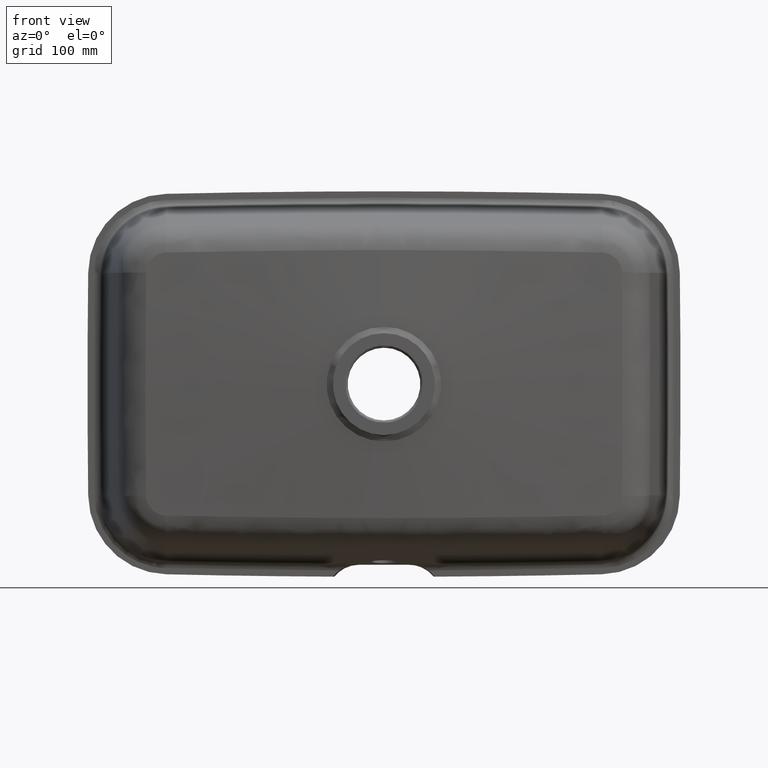
[diagram: clean part render]
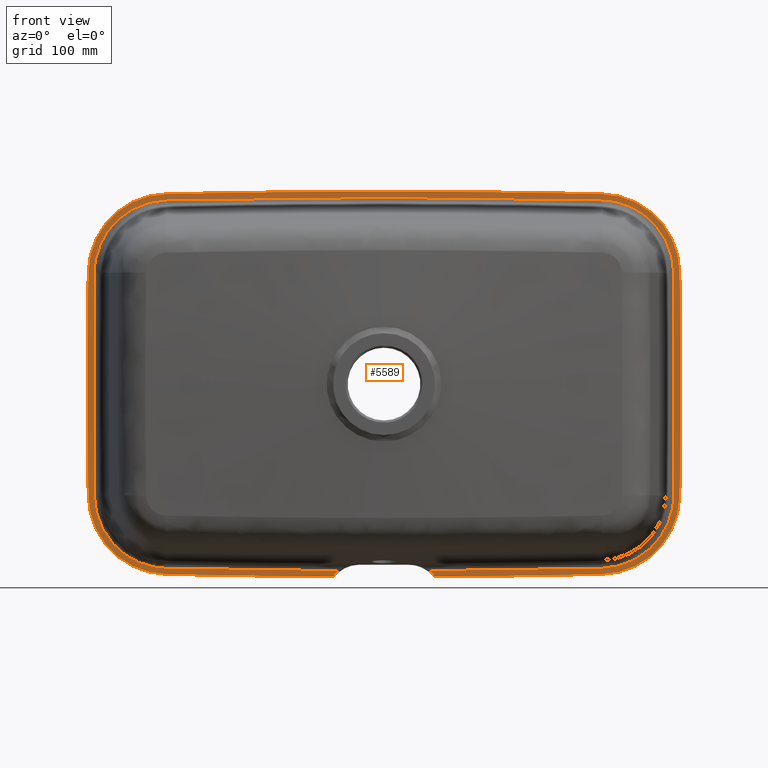
[diagram: same view with one face highlighted and labeled with its STEP entity id]
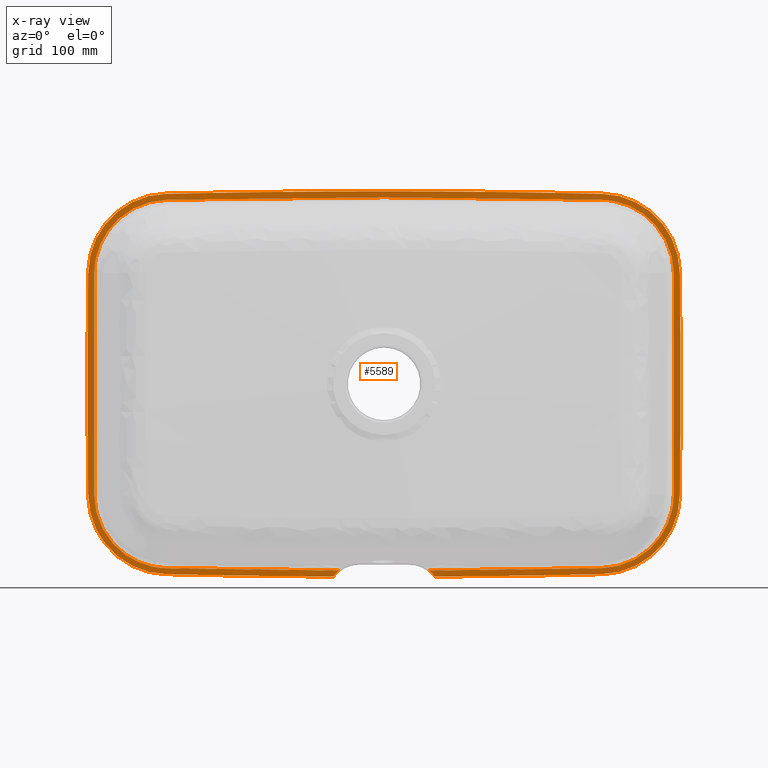
[diagram: x-ray of the same camera — body ghosted, the highlighted face saturated]
A machine part, front view. The second image highlights one B-rep face of the part: STEP entity #5589.
The next image is the same camera in x-ray: the body ghosted, the highlighted face saturated — about 0% of this face is hidden behind the body in this view.
In plain terms, the highlighted planar face has unit normal (0, 1, 0).
Its self-contained STEP definition (entity closure, byte-faithful):
#14 = CARTESIAN_POINT ( 'NONE',  ( -61.46391683930869500, 203.4999999999999400, -237.5908480095762900 ) ) ;
#21 = CARTESIAN_POINT ( 'NONE',  ( -2.789091418521479200E-012, 203.5000000000000000, -11595.50000000000000 ) ) ;
#40 = CARTESIAN_POINT ( 'NONE',  ( -181.1740568797071100, 203.5000000000000000, 231.9082853297289000 ) ) ;
#61 = VERTEX_POINT ( 'NONE', #4414 ) ;
#64 = DIRECTION ( 'NONE',  ( 0.0000000000000000000, 0.0000000000000000000, 1.000000000000000000 ) ) ;
#85 = CARTESIAN_POINT ( 'NONE',  ( 269.6277817311143400, 203.5000000000000000, 137.9024523715530700 ) ) ;
#86 = VERTEX_POINT ( 'NONE', #6248 ) ;
#101 = DIRECTION ( 'NONE',  ( 0.0000000000000000000, 1.000000000000000000, 0.0000000000000000000 ) ) ;
#116 = CARTESIAN_POINT ( 'NONE',  ( -369.1198211993104200, 203.5000000000000000, -139.1610557480865100 ) ) ;
#129 = CARTESIAN_POINT ( 'NONE',  ( -271.7401651241040100, 203.5000000000000000, 229.8271209816148800 ) ) ;
#144 = CARTESIAN_POINT ( 'NONE',  ( -134.8138908655571400, 203.5000000000000000, 5728.798773814222800 ) ) ;
#298 = ORIENTED_EDGE ( 'NONE', *, *, #433, .F. ) ;
#313 = CARTESIAN_POINT ( 'NONE',  ( 324.0794901203088300, 203.5000000000000000, -228.6243891948755000 ) ) ;
#318 = CIRCLE ( 'NONE', #1266, 11001.50000000000400 ) ;
#331 = ORIENTED_EDGE ( 'NONE', *, *, #5134, .F. ) ;
#383 = AXIS2_PLACEMENT_3D ( 'NONE', #6853, #976, #1057 ) ;
#388 = CARTESIAN_POINT ( 'NONE',  ( 369.1198211993098500, 203.5000000000000000, -139.1610557480904600 ) ) ;
#405 = CARTESIAN_POINT ( 'NONE',  ( -271.7401651240930400, 203.5000000000000000, -229.8271209816169600 ) ) ;
#433 = EDGE_CURVE ( 'NONE', #1028, #4282, #6781, .T. ) ;
#455 = CARTESIAN_POINT ( 'NONE',  ( 361.5693614940846600, 203.5000000000000000, -139.0655402261418800 ) ) ;
#477 = CARTESIAN_POINT ( 'NONE',  ( -199.9874987070502600, 203.5000000000000000, -231.4759617469318300 ) ) ;
#482 = VERTEX_POINT ( 'NONE', #6131 ) ;
#539 = CARTESIAN_POINT ( 'NONE',  ( -56.45497491660113100, 203.4999992537958900, -232.8142155136796700 ) ) ;
#558 = CARTESIAN_POINT ( 'NONE',  ( -361.5693614940870500, 203.5000000000000000, -139.0655402261398000 ) ) ;
#563 = ORIENTED_EDGE ( 'NONE', *, *, #2788, .F. ) ;
#596 = AXIS2_PLACEMENT_3D ( 'NONE', #21, #2124, #64 ) ;
#623 = DIRECTION ( 'NONE',  ( 0.0000000000000000000, 1.000000000000000000, 0.0000000000000000000 ) ) ;
#633 = VERTEX_POINT ( 'NONE', #2573 ) ;
#634 = CIRCLE ( 'NONE', #3671, 11836.00000000000000 ) ;
#652 = DIRECTION ( 'NONE',  ( 0.0000000000000000000, 1.000000000000000000, 0.0000000000000000000 ) ) ;
#706 =( BOUNDED_CURVE ( )  B_SPLINE_CURVE ( 3, ( #2717, #3730, #5882, #558 ),
 .UNSPECIFIED., .F., .F. ) 
 B_SPLINE_CURVE_WITH_KNOTS ( ( 4, 4 ),
 ( 0.0000000000000000000, 1.000000000000000000 ),
 .UNSPECIFIED. ) 
 CURVE ( )  GEOMETRIC_REPRESENTATION_ITEM ( )  RATIONAL_B_SPLINE_CURVE ( ( 1.000000000000000000, 0.9999466631034741300, 0.9999466631034741300, 1.000000000000000000 ) ) 
 REPRESENTATION_ITEM ( '' )  );
#721 = CARTESIAN_POINT ( 'NONE',  ( 59.08227640845071700, 203.5000000000000900, -235.0857419168407000 ) ) ;
#806 = CARTESIAN_POINT ( 'NONE',  ( 181.1740568797055500, 203.5000000000000000, 231.9082853297272500 ) ) ;
#904 = CARTESIAN_POINT ( 'NONE',  ( -360.9071319300246000, 203.4999999999999700, -191.4144939579395600 ) ) ;
#956 = EDGE_CURVE ( 'NONE', #3403, #2384, #6052, .T. ) ;
#976 = DIRECTION ( 'NONE',  ( 0.0000000000000000000, 1.000000000000000000, 0.0000000000000000000 ) ) ;
#983 = CARTESIAN_POINT ( 'NONE',  ( 271.7401651241060600, 203.5000000000000000, 229.8271209816126700 ) ) ;
#1028 = VERTEX_POINT ( 'NONE', #3636 ) ;
#1034 = DIRECTION ( 'NONE',  ( 0.0000000000000000000, 0.0000000000000000000, 1.000000000000000000 ) ) ;
#1050 = B_SPLINE_CURVE_WITH_KNOTS ( 'NONE', 3,
 ( #4841, #3129, #3788, #4334 ),
 .UNSPECIFIED., .F., .F.,
 ( 4, 4 ),
 ( 0.0000000000000000000, 1.000000000000000000 ),
 .UNSPECIFIED. ) ;
#1057 = DIRECTION ( 'NONE',  ( 0.0000000000000000000, 0.0000000000000000000, 1.000000000000000000 ) ) ;
#1080 = CARTESIAN_POINT ( 'NONE',  ( -10631.50000000000000, 203.5000000000000000, 2.574334280931536900E-012 ) ) ;
#1112 = CARTESIAN_POINT ( 'NONE',  ( -63.60033079769817000, 203.5000000008343200, -240.3291216892005200 ) ) ;
#1114 = CARTESIAN_POINT ( 'NONE',  ( -271.7401651241040100, 203.5000000000000000, 229.8271209816148800 ) ) ;
#1115 = ORIENTED_EDGE ( 'NONE', *, *, #2928, .F. ) ;
#1126 =( BOUNDED_CURVE ( )  B_SPLINE_CURVE ( 3, ( #129, #6009, #2295, #6034 ),
 .UNSPECIFIED., .F., .F. ) 
 B_SPLINE_CURVE_WITH_KNOTS ( ( 4, 4 ),
 ( 0.0000000000000000000, 1.000000000000000000 ),
 .UNSPECIFIED. ) 
 CURVE ( )  GEOMETRIC_REPRESENTATION_ITEM ( )  RATIONAL_B_SPLINE_CURVE ( ( 1.000000000000000000, 0.8130595385763244000, 0.8130595385763244000, 1.000000000000000000 ) ) 
 REPRESENTATION_ITEM ( '' )  );
#1134 = CARTESIAN_POINT ( 'NONE',  ( 5.834249964947717800E-014, 203.5000000000000000, 11595.50000000000000 ) ) ;
#1148 = PLANE ( 'NONE',  #1841 ) ;
#1212 = EDGE_CURVE ( 'NONE', #6640, #2904, #6430, .T. ) ;
#1266 = AXIS2_PLACEMENT_3D ( 'NONE', #1080, #4254, #1609 ) ;
#1277 = VERTEX_POINT ( 'NONE', #2889 ) ;
#1325 = DIRECTION ( 'NONE',  ( 0.0000000000000000000, 0.0000000000000000000, 1.000000000000000000 ) ) ;
#1335 = DIRECTION ( 'NONE',  ( 0.0000000000000000000, 1.000000000000000000, 0.0000000000000000000 ) ) ;
#1382 = VERTEX_POINT ( 'NONE', #1112 ) ;
#1397 = ORIENTED_EDGE ( 'NONE', *, *, #1655, .T. ) ;
#1419 = CARTESIAN_POINT ( 'NONE',  ( 361.5693614940860800, 203.5000000000000000, 139.0655402261398300 ) ) ;
#1441 = DIRECTION ( 'NONE',  ( 0.0000000000000000000, 1.000000000000000000, 0.0000000000000000000 ) ) ;
#1463 = CARTESIAN_POINT ( 'NONE',  ( 362.7421433664842400, 203.5000000000000000, -46.35765264870482800 ) ) ;
#1465 = ORIENTED_EDGE ( 'NONE', *, *, #4057, .F. ) ;
#1508 = CARTESIAN_POINT ( 'NONE',  ( -271.7401651241040100, 203.5000000000000000, 229.8271209816148800 ) ) ;
#1574 = CARTESIAN_POINT ( 'NONE',  ( -2.783677875738043500E-012, 203.5000000000000000, 232.9489361693133800 ) ) ;
#1609 = DIRECTION ( 'NONE',  ( 0.0000000000000000000, 0.0000000000000000000, 1.000000000000000000 ) ) ;
#1655 = EDGE_CURVE ( 'NONE', #86, #5818, #5123, .T. ) ;
#1664 = DIRECTION ( 'NONE',  ( 0.0000000000000000000, 1.000000000000000000, 0.0000000000000000000 ) ) ;
#1684 = ORIENTED_EDGE ( 'NONE', *, *, #1212, .F. ) ;
#1700 = DIRECTION ( 'NONE',  ( 0.0000000000000000000, -0.0000000000000000000, 1.000000000000000000 ) ) ;
#1725 = B_SPLINE_CURVE_WITH_KNOTS ( 'NONE', 3,
 ( #2069, #2515, #14, #6357, #3754, #539 ),
 .UNSPECIFIED., .F., .F.,
 ( 4, 2, 4 ),
 ( 0.0000000000000000000, 0.005184831452077947100, 0.01036966290415589400 ),
 .UNSPECIFIED. ) ;
#1841 = AXIS2_PLACEMENT_3D ( 'NONE', #144, #623, #1700 ) ;
#1866 = DIRECTION ( 'NONE',  ( 0.0000000000000000000, 0.0000000000000000000, 1.000000000000000000 ) ) ;
#1867 = VERTEX_POINT ( 'NONE', #3030 ) ;
#1954 = ORIENTED_EDGE ( 'NONE', *, *, #2109, .F. ) ;
#2023 = CARTESIAN_POINT ( 'NONE',  ( -271.7401651240930400, 203.5000000000000000, -229.8271209816169600 ) ) ;
#2066 = AXIS2_PLACEMENT_3D ( 'NONE', #5661, #1441, #2431 ) ;
#2069 = CARTESIAN_POINT ( 'NONE',  ( -63.60033079769817000, 203.5000000008343200, -240.3291216892005200 ) ) ;
#2093 = EDGE_CURVE ( 'NONE', #1382, #1867, #1725, .T. ) ;
#2109 = EDGE_CURVE ( 'NONE', #2904, #5238, #318, .T. ) ;
#2121 = EDGE_CURVE ( 'NONE', #482, #61, #706, .T. ) ;
#2124 = DIRECTION ( 'NONE',  ( 0.0000000000000000000, 1.000000000000000000, 0.0000000000000000000 ) ) ;
#2240 = CARTESIAN_POINT ( 'NONE',  ( -369.1198211993098500, 203.5000000000000000, 139.1610557480790900 ) ) ;
#2284 = DIRECTION ( 'NONE',  ( 0.0000000000000000000, 0.0000000000000000000, 1.000000000000000000 ) ) ;
#2295 = CARTESIAN_POINT ( 'NONE',  ( -360.9071319300259100, 203.5000000000000000, 191.4144939579320800 ) ) ;
#2319 = CIRCLE ( 'NONE', #383, 11836.00000000000000 ) ;
#2346 = CARTESIAN_POINT ( 'NONE',  ( 63.60033079867832800, 203.5000000007762300, -240.3291216932633200 ) ) ;
#2363 = CARTESIAN_POINT ( 'NONE',  ( 271.7401651241060600, 203.5000000000000000, 229.8271209816126700 ) ) ;
#2384 = VERTEX_POINT ( 'NONE', #5147 ) ;
#2409 = B_SPLINE_CURVE_WITH_KNOTS ( 'NONE', 3,
 ( #6172, #2988, #477, #4642 ),
 .UNSPECIFIED., .F., .F.,
 ( 4, 4 ),
 ( 0.0000000000000000000, 1.000000000000000000 ),
 .UNSPECIFIED. ) ;
#2431 = DIRECTION ( 'NONE',  ( 0.0000000000000000000, 0.0000000000000000000, 1.000000000000000000 ) ) ;
#2469 = CARTESIAN_POINT ( 'NONE',  ( -361.5693614940870500, 203.5000000000000000, -139.0655402261398000 ) ) ;
#2498 = VERTEX_POINT ( 'NONE', #1114 ) ;
#2515 = CARTESIAN_POINT ( 'NONE',  ( -62.57361342567095600, 203.5000000000000000, -238.9205354701124700 ) ) ;
#2573 = CARTESIAN_POINT ( 'NONE',  ( -2.789091418521479200E-012, 203.5000000000000000, 240.5000000000008200 ) ) ;
#2700 = DIRECTION ( 'NONE',  ( 0.0000000000000000000, 0.0000000000000000000, 1.000000000000000000 ) ) ;
#2717 = CARTESIAN_POINT ( 'NONE',  ( -361.5693614940866500, 203.5000000000000000, 139.0655402261348900 ) ) ;
#2722 = ORIENTED_EDGE ( 'NONE', *, *, #2093, .T. ) ;
#2788 = EDGE_CURVE ( 'NONE', #4282, #1277, #4860, .T. ) ;
#2801 =( BOUNDED_CURVE ( )  B_SPLINE_CURVE ( 3, ( #2469, #904, #3032, #2023 ),
 .UNSPECIFIED., .F., .F. ) 
 B_SPLINE_CURVE_WITH_KNOTS ( ( 4, 4 ),
 ( 0.0000000000000000000, 1.000000000000000000 ),
 .UNSPECIFIED. ) 
 CURVE ( )  GEOMETRIC_REPRESENTATION_ITEM ( )  RATIONAL_B_SPLINE_CURVE ( ( 1.000000000000000000, 0.8130595385763088600, 0.8130595385763088600, 1.000000000000000000 ) ) 
 REPRESENTATION_ITEM ( '' )  );
#2815 = ORIENTED_EDGE ( 'NONE', *, *, #3310, .F. ) ;
#2871 = CARTESIAN_POINT ( 'NONE',  ( 62.57361342612173900, 203.5000000000000000, -238.9205354705374300 ) ) ;
#2876 = AXIS2_PLACEMENT_3D ( 'NONE', #4469, #1335, #1866 ) ;
#2889 = CARTESIAN_POINT ( 'NONE',  ( 361.5693614940860800, 203.5000000000000000, 139.0655402261398300 ) ) ;
#2904 = VERTEX_POINT ( 'NONE', #4719 ) ;
#2928 = EDGE_CURVE ( 'NONE', #2384, #2498, #4232, .T. ) ;
#2985 = ORIENTED_EDGE ( 'NONE', *, *, #4185, .T. ) ;
#2988 = CARTESIAN_POINT ( 'NONE',  ( -128.2257698910690900, 203.5000000000000000, -232.4716583746813100 ) ) ;
#3010 = CARTESIAN_POINT ( 'NONE',  ( 271.7401651241094100, 203.5000000000000000, -229.8271209816142000 ) ) ;
#3030 = CARTESIAN_POINT ( 'NONE',  ( -56.45497491660113100, 203.4999992537958900, -232.8142155136796700 ) ) ;
#3032 = CARTESIAN_POINT ( 'NONE',  ( -324.0794901203048000, 203.4999999999999700, -228.6243891948870700 ) ) ;
#3095 = ORIENTED_EDGE ( 'NONE', *, *, #3982, .F. ) ;
#3129 = CARTESIAN_POINT ( 'NONE',  ( 199.9874987070470200, 203.5000000000000000, -231.4759617469315200 ) ) ;
#3157 = EDGE_CURVE ( 'NONE', #2498, #482, #1126, .T. ) ;
#3304 = VERTEX_POINT ( 'NONE', #4007 ) ;
#3310 = EDGE_CURVE ( 'NONE', #3668, #633, #634, .T. ) ;
#3381 = EDGE_CURVE ( 'NONE', #61, #5073, #2801, .T. ) ;
#3403 = VERTEX_POINT ( 'NONE', #983 ) ;
#3524 = DIRECTION ( 'NONE',  ( 0.0000000000000000000, 1.000000000000000000, 0.0000000000000000000 ) ) ;
#3567 = ORIENTED_EDGE ( 'NONE', *, *, #6045, .F. ) ;
#3636 = CARTESIAN_POINT ( 'NONE',  ( 271.7401651241094100, 203.5000000000000000, -229.8271209816142000 ) ) ;
#3668 = VERTEX_POINT ( 'NONE', #5003 ) ;
#3671 = AXIS2_PLACEMENT_3D ( 'NONE', #6126, #3524, #1325 ) ;
#3730 = CARTESIAN_POINT ( 'NONE',  ( -362.7421433664841300, 203.5000000000000000, 46.35765264869956300 ) ) ;
#3754 = CARTESIAN_POINT ( 'NONE',  ( -57.81033628010186500, 203.5000000000000900, -233.9103197506993000 ) ) ;
#3788 = CARTESIAN_POINT ( 'NONE',  ( 128.2257698910627800, 203.5000000000000000, -232.4716583746819100 ) ) ;
#3905 =( BOUNDED_CURVE ( )  B_SPLINE_CURVE ( 3, ( #1419, #4198, #6776, #6188 ),
 .UNSPECIFIED., .F., .F. ) 
 B_SPLINE_CURVE_WITH_KNOTS ( ( 4, 4 ),
 ( 0.0000000000000000000, 1.000000000000000000 ),
 .UNSPECIFIED. ) 
 CURVE ( )  GEOMETRIC_REPRESENTATION_ITEM ( )  RATIONAL_B_SPLINE_CURVE ( ( 1.000000000000000000, 0.8130595385763355100, 0.8130595385763355100, 1.000000000000000000 ) ) 
 REPRESENTATION_ITEM ( '' )  );
#3982 = EDGE_CURVE ( 'NONE', #5238, #3304, #4545, .T. ) ;
#3999 = FACE_OUTER_BOUND ( 'NONE', #6458, .T. ) ;
#4007 = CARTESIAN_POINT ( 'NONE',  ( 271.9136390380002700, 203.5000000000000000, -237.3761919030126800 ) ) ;
#4013 = CARTESIAN_POINT ( 'NONE',  ( 361.5693614940846600, 203.5000000000000000, -139.0655402261418800 ) ) ;
#4015 = AXIS2_PLACEMENT_3D ( 'NONE', #85, #652, #2700 ) ;
#4057 = EDGE_CURVE ( 'NONE', #6543, #4387, #6196, .T. ) ;
#4083 = CARTESIAN_POINT ( 'NONE',  ( 360.9071319300198300, 203.5000000000000000, -191.4144939579320800 ) ) ;
#4121 = ORIENTED_EDGE ( 'NONE', *, *, #3381, .F. ) ;
#4138 = AXIS2_PLACEMENT_3D ( 'NONE', #5398, #5917, #1034 ) ;
#4185 = EDGE_CURVE ( 'NONE', #1028, #86, #1050, .T. ) ;
#4198 = CARTESIAN_POINT ( 'NONE',  ( 360.9071319300219300, 203.5000000000000000, 191.4144939579331000 ) ) ;
#4232 =( BOUNDED_CURVE ( )  B_SPLINE_CURVE ( 3, ( #1574, #4281, #40, #1508 ),
 .UNSPECIFIED., .F., .T. ) 
 B_SPLINE_CURVE_WITH_KNOTS ( ( 4, 4 ),
 ( 0.0000000000000000000, 1.000000000000000000 ),
 .UNSPECIFIED. ) 
 CURVE ( )  GEOMETRIC_REPRESENTATION_ITEM ( )  RATIONAL_B_SPLINE_CURVE ( ( 1.000000000000000000, 0.9999560111642461500, 0.9999560111642461500, 1.000000000000000000 ) ) 
 REPRESENTATION_ITEM ( '' )  );
#4254 = DIRECTION ( 'NONE',  ( 0.0000000000000000000, 1.000000000000000000, 0.0000000000000000000 ) ) ;
#4281 = CARTESIAN_POINT ( 'NONE',  ( -90.59001715189261000, 203.5000000000000000, 232.9489361693131300 ) ) ;
#4282 = VERTEX_POINT ( 'NONE', #5486 ) ;
#4323 = VERTEX_POINT ( 'NONE', #2240 ) ;
#4334 = CARTESIAN_POINT ( 'NONE',  ( 56.45497491694102600, 203.4999992538626000, -232.8142155132655100 ) ) ;
#4387 = VERTEX_POINT ( 'NONE', #116 ) ;
#4414 = CARTESIAN_POINT ( 'NONE',  ( -361.5693614940870500, 203.5000000000000000, -139.0655402261398000 ) ) ;
#4469 = CARTESIAN_POINT ( 'NONE',  ( 269.6277817311152500, 203.5000000000000000, -137.9024523715539800 ) ) ;
#4494 = EDGE_CURVE ( 'NONE', #633, #6640, #4706, .T. ) ;
#4509 = EDGE_CURVE ( 'NONE', #1382, #6543, #6191, .T. ) ;
#4545 = CIRCLE ( 'NONE', #2876, 99.50000000000036900 ) ;
#4548 = CARTESIAN_POINT ( 'NONE',  ( 90.59001715189045000, 203.5000000000000000, 232.9489361693131300 ) ) ;
#4621 = CARTESIAN_POINT ( 'NONE',  ( 361.5693614940860800, 203.5000000000000000, 139.0655402261398300 ) ) ;
#4642 = CARTESIAN_POINT ( 'NONE',  ( -271.7401651240930400, 203.5000000000000000, -229.8271209816169600 ) ) ;
#4693 = EDGE_CURVE ( 'NONE', #1867, #5073, #2409, .T. ) ;
#4706 = CIRCLE ( 'NONE', #596, 11836.00000000000000 ) ;
#4719 = CARTESIAN_POINT ( 'NONE',  ( 369.1198211993091100, 203.5000000000000000, 139.1610557480871100 ) ) ;
#4725 = ORIENTED_EDGE ( 'NONE', *, *, #956, .F. ) ;
#4841 = CARTESIAN_POINT ( 'NONE',  ( 271.7401651241094100, 203.5000000000000000, -229.8271209816142000 ) ) ;
#4860 =( BOUNDED_CURVE ( )  B_SPLINE_CURVE ( 3, ( #455, #1463, #5751, #4621 ),
 .UNSPECIFIED., .F., .F. ) 
 B_SPLINE_CURVE_WITH_KNOTS ( ( 4, 4 ),
 ( 0.0000000000000000000, 1.000000000000000000 ),
 .UNSPECIFIED. ) 
 CURVE ( )  GEOMETRIC_REPRESENTATION_ITEM ( )  RATIONAL_B_SPLINE_CURVE ( ( 1.000000000000000000, 0.9999466631034741300, 0.9999466631034741300, 1.000000000000000000 ) ) 
 REPRESENTATION_ITEM ( '' )  );
#4873 = ORIENTED_EDGE ( 'NONE', *, *, #3157, .F. ) ;
#4997 = CARTESIAN_POINT ( 'NONE',  ( 56.45497491694102600, 203.4999992538626000, -232.8142155132655100 ) ) ;
#5003 = CARTESIAN_POINT ( 'NONE',  ( -271.9136390379958400, 203.5000000000000000, 237.3761919030138500 ) ) ;
#5055 = ORIENTED_EDGE ( 'NONE', *, *, #5428, .F. ) ;
#5073 = VERTEX_POINT ( 'NONE', #405 ) ;
#5123 = B_SPLINE_CURVE_WITH_KNOTS ( 'NONE', 3,
 ( #4997, #5502, #721, #6552, #2871, #2346 ),
 .UNSPECIFIED., .F., .F.,
 ( 4, 2, 4 ),
 ( 0.0000000000000000000, 0.005184831452515787000, 0.01036966290503157400 ),
 .UNSPECIFIED. ) ;
#5134 = EDGE_CURVE ( 'NONE', #4387, #4323, #6765, .T. ) ;
#5147 = CARTESIAN_POINT ( 'NONE',  ( -2.783677875738043500E-012, 203.5000000000000000, 232.9489361693133800 ) ) ;
#5238 = VERTEX_POINT ( 'NONE', #388 ) ;
#5343 = AXIS2_PLACEMENT_3D ( 'NONE', #1134, #1664, #5981 ) ;
#5398 = CARTESIAN_POINT ( 'NONE',  ( -269.6277817311125800, 203.5000000000000000, 137.9024523715521900 ) ) ;
#5426 = AXIS2_PLACEMENT_3D ( 'NONE', #6498, #101, #2284 ) ;
#5428 = EDGE_CURVE ( 'NONE', #4323, #3668, #6852, .T. ) ;
#5486 = CARTESIAN_POINT ( 'NONE',  ( 361.5693614940846600, 203.5000000000000000, -139.0655402261418800 ) ) ;
#5495 = CARTESIAN_POINT ( 'NONE',  ( -2.783677875738043500E-012, 203.5000000000000000, 232.9489361693133800 ) ) ;
#5502 = CARTESIAN_POINT ( 'NONE',  ( 57.81033628073642200, 203.4999999999999700, -233.9103197501440500 ) ) ;
#5589 = ADVANCED_FACE ( 'NONE', ( #3999 ), #1148, .F. ) ;
#5661 = CARTESIAN_POINT ( 'NONE',  ( -269.6277817311143400, 203.5000000000000000, -137.9024523715530700 ) ) ;
#5751 = CARTESIAN_POINT ( 'NONE',  ( 362.7421433664841900, 203.5000000000000000, 46.35765264870158100 ) ) ;
#5818 = VERTEX_POINT ( 'NONE', #6096 ) ;
#5882 = CARTESIAN_POINT ( 'NONE',  ( -362.7421433664841300, 203.5000000000000000, -46.35765264870364900 ) ) ;
#5917 = DIRECTION ( 'NONE',  ( 0.0000000000000000000, 1.000000000000000000, 0.0000000000000000000 ) ) ;
#5965 = ORIENTED_EDGE ( 'NONE', *, *, #4494, .F. ) ;
#5981 = DIRECTION ( 'NONE',  ( 0.0000000000000000000, 0.0000000000000000000, 1.000000000000000000 ) ) ;
#6003 = ORIENTED_EDGE ( 'NONE', *, *, #2121, .F. ) ;
#6009 = CARTESIAN_POINT ( 'NONE',  ( -324.0794901203108200, 203.5000000000000000, 228.6243891948807900 ) ) ;
#6017 = EDGE_CURVE ( 'NONE', #1277, #3403, #3905, .T. ) ;
#6034 = CARTESIAN_POINT ( 'NONE',  ( -361.5693614940866500, 203.5000000000000000, 139.0655402261348900 ) ) ;
#6045 = EDGE_CURVE ( 'NONE', #3304, #5818, #2319, .T. ) ;
#6052 =( BOUNDED_CURVE ( )  B_SPLINE_CURVE ( 3, ( #2363, #806, #4548, #5495 ),
 .UNSPECIFIED., .F., .F. ) 
 B_SPLINE_CURVE_WITH_KNOTS ( ( 4, 4 ),
 ( 0.0000000000000000000, 1.000000000000000000 ),
 .UNSPECIFIED. ) 
 CURVE ( )  GEOMETRIC_REPRESENTATION_ITEM ( )  RATIONAL_B_SPLINE_CURVE ( ( 1.000000000000000000, 0.9999560111642461500, 0.9999560111642461500, 1.000000000000000000 ) ) 
 REPRESENTATION_ITEM ( '' )  );
#6088 = CARTESIAN_POINT ( 'NONE',  ( -271.9136390379947000, 203.5000000000000000, -237.3761919030132200 ) ) ;
#6096 = CARTESIAN_POINT ( 'NONE',  ( 63.60033079867832800, 203.5000000007762300, -240.3291216932633200 ) ) ;
#6126 = CARTESIAN_POINT ( 'NONE',  ( -2.789091418521479200E-012, 203.5000000000000000, -11595.50000000000000 ) ) ;
#6131 = CARTESIAN_POINT ( 'NONE',  ( -361.5693614940866500, 203.5000000000000000, 139.0655402261348900 ) ) ;
#6172 = CARTESIAN_POINT ( 'NONE',  ( -56.45497491660113100, 203.4999992537958900, -232.8142155136796700 ) ) ;
#6188 = CARTESIAN_POINT ( 'NONE',  ( 271.7401651241060600, 203.5000000000000000, 229.8271209816126700 ) ) ;
#6191 = CIRCLE ( 'NONE', #5343, 11836.00000000000000 ) ;
#6196 = CIRCLE ( 'NONE', #2066, 99.50000000000221700 ) ;
#6218 = ORIENTED_EDGE ( 'NONE', *, *, #4693, .T. ) ;
#6248 = CARTESIAN_POINT ( 'NONE',  ( 56.45497491694102600, 203.4999992538626000, -232.8142155132655100 ) ) ;
#6357 = CARTESIAN_POINT ( 'NONE',  ( -59.08227640788847200, 203.4999999999999400, -235.0857419171078100 ) ) ;
#6409 = ORIENTED_EDGE ( 'NONE', *, *, #6017, .F. ) ;
#6430 = CIRCLE ( 'NONE', #4015, 99.49999999999967300 ) ;
#6458 = EDGE_LOOP ( 'NONE', ( #2722, #6218, #4121, #6003, #4873, #1115, #4725, #6409, #563, #298, #2985, #1397, #3567, #3095, #1954, #1684, #5965, #2815, #5055, #331, #1465, #6634 ) ) ;
#6481 = CARTESIAN_POINT ( 'NONE',  ( 271.9136390379977100, 203.5000000000000000, 237.3761919030119100 ) ) ;
#6498 = CARTESIAN_POINT ( 'NONE',  ( 10631.50000000000000, 203.5000000000000000, -3.176554938584253400E-014 ) ) ;
#6543 = VERTEX_POINT ( 'NONE', #6088 ) ;
#6552 = CARTESIAN_POINT ( 'NONE',  ( 61.46391683975516400, 203.5000000000000900, -237.5908480098218000 ) ) ;
#6634 = ORIENTED_EDGE ( 'NONE', *, *, #4509, .F. ) ;
#6640 = VERTEX_POINT ( 'NONE', #6481 ) ;
#6765 = CIRCLE ( 'NONE', #5426, 11001.50000000000400 ) ;
#6776 = CARTESIAN_POINT ( 'NONE',  ( 324.0794901203088300, 203.5000000000000000, 228.6243891948782600 ) ) ;
#6781 =( BOUNDED_CURVE ( )  B_SPLINE_CURVE ( 3, ( #3010, #313, #4083, #4013 ),
 .UNSPECIFIED., .F., .F. ) 
 B_SPLINE_CURVE_WITH_KNOTS ( ( 4, 4 ),
 ( 0.0000000000000000000, 1.000000000000000000 ),
 .UNSPECIFIED. ) 
 CURVE ( )  GEOMETRIC_REPRESENTATION_ITEM ( )  RATIONAL_B_SPLINE_CURVE ( ( 1.000000000000000000, 0.8130595385763419400, 0.8130595385763419400, 1.000000000000000000 ) ) 
 REPRESENTATION_ITEM ( '' )  );
#6852 = CIRCLE ( 'NONE', #4138, 99.50000000000270000 ) ;
#6853 = CARTESIAN_POINT ( 'NONE',  ( 5.834249964947717800E-014, 203.5000000000000000, 11595.50000000000000 ) ) ;